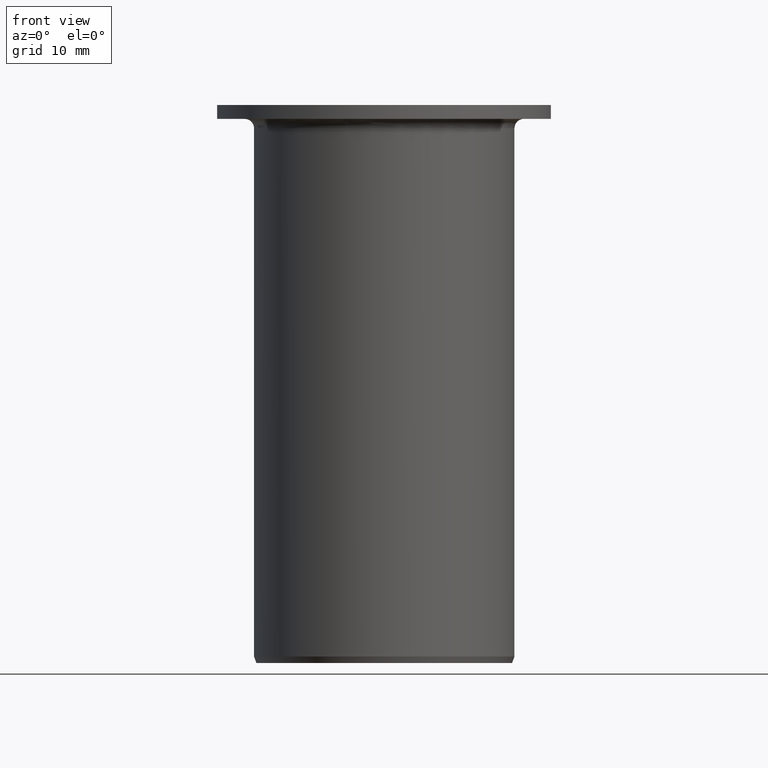
[diagram: clean part render]
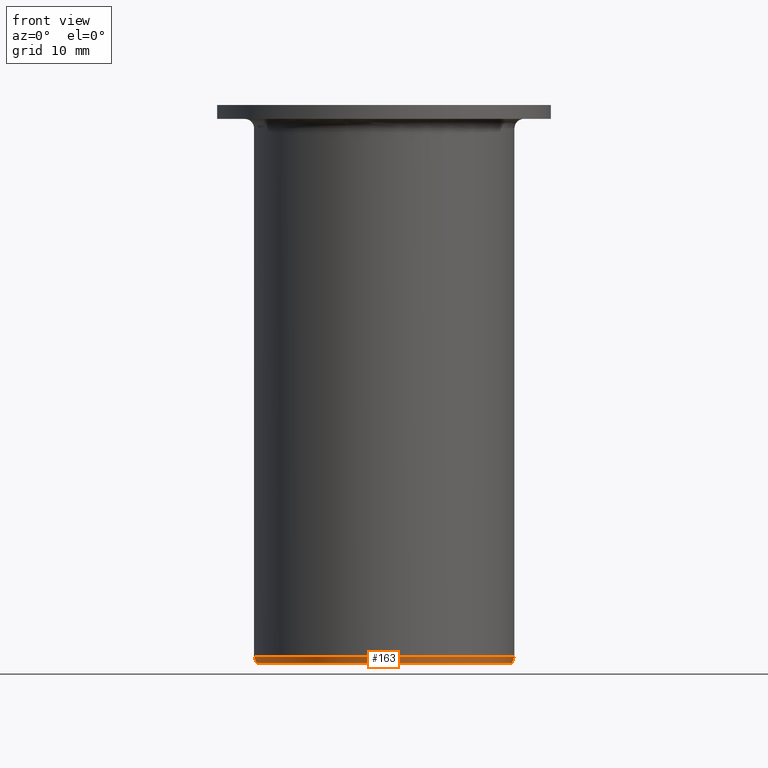
[diagram: same view with one face highlighted and labeled with its STEP entity id]
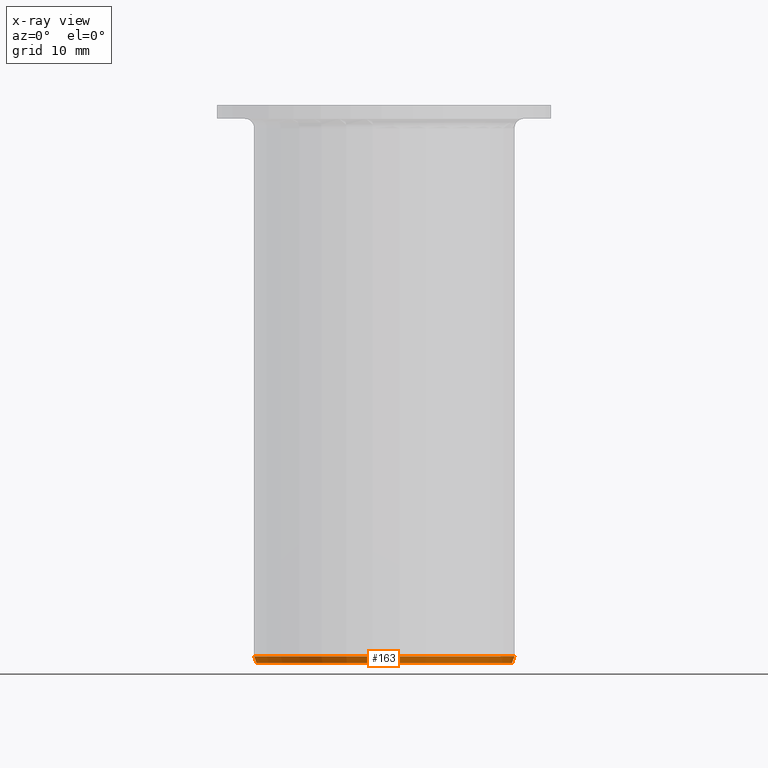
[diagram: x-ray of the same camera — body ghosted, the highlighted face saturated]
A machine part, front view. The second image highlights one B-rep face of the part: STEP entity #163.
The next image is the same camera in x-ray: the body ghosted, the highlighted face saturated — about 0% of this face is hidden behind the body in this view.
In plain terms, the highlighted conical surface has half-angle 20 deg.
Its self-contained STEP definition (entity closure, byte-faithful):
#163=ADVANCED_FACE('',(#187),#188,.T.);
#187=FACE_OUTER_BOUND('',#212,.T.);
#188=CONICAL_SURFACE('',#213,0.0137452208360137,0.349065850398866);
#212=EDGE_LOOP('',(#292,#293,#294,#295));
#213=AXIS2_PLACEMENT_3D('',#296,#297,#298);
#292=ORIENTED_EDGE('',*,*,#337,.T.);
#293=ORIENTED_EDGE('',*,*,#341,.T.);
#294=ORIENTED_EDGE('',*,*,#339,.F.);
#295=ORIENTED_EDGE('',*,*,#318,.F.);
#296=CARTESIAN_POINT('',(0.0,0.0,0.0));
#297=DIRECTION('',(-0.0,6.12323399573677E-017,1.0));
#298=DIRECTION('',(0.0,-1.0,6.12323399573677E-017));
#318=EDGE_CURVE('',#353,#355,#356,.T.);
#337=EDGE_CURVE('',#353,#384,#386,.T.);
#339=EDGE_CURVE('',#355,#388,#389,.T.);
#341=EDGE_CURVE('',#384,#388,#391,.T.);
#353=VERTEX_POINT('',#428);
#355=VERTEX_POINT('',#431);
#356=B_SPLINE_CURVE_WITH_KNOTS('',3,(#432,#433,#434,#435),.UNSPECIFIED.,.F.,.F.,(4,4),(2.13093934189463E-007,0.000746058978307667),.UNSPECIFIED.);
#384=VERTEX_POINT('',#496);
#386=CIRCLE('',#499,0.014);
#388=VERTEX_POINT('',#502);
#389=CIRCLE('',#503,0.0137452208360137);
#391=B_SPLINE_CURVE_WITH_KNOTS('',3,(#506,#507,#508,#509),.UNSPECIFIED.,.F.,.F.,(4,4),(2.13093934189362E-007,0.000746058978307668),.UNSPECIFIED.);
#428=CARTESIAN_POINT('',(0.0139930965719509,-0.000439600191146724,0.0007));
#431=CARTESIAN_POINT('',(0.0137395471423367,-0.00039489258576251,6.43083039248804E-019));
#432=CARTESIAN_POINT('',(0.0139930965719509,-0.000439600191146727,0.000700000000000003));
#433=CARTESIAN_POINT('',(0.0139085944281181,-0.000424700183261299,0.00046666131427307));
#434=CARTESIAN_POINT('',(0.0138240782219094,-0.000409797695799589,0.000233327878928245));
#435=CARTESIAN_POINT('',(0.0137395471423367,-0.000394892585762511,-1.1387211616313E-018));
#496=CARTESIAN_POINT('',(0.0139930965719509,0.000439600191146726,0.0007));
#499=AXIS2_PLACEMENT_3D('',#544,#545,#546);
#502=CARTESIAN_POINT('',(0.0137395471423367,0.000394892585762509,-2.4180197058054E-020));
#503=AXIS2_PLACEMENT_3D('',#548,#549,#550);
#506=CARTESIAN_POINT('',(0.0139930965719509,0.000439600191146727,0.000700000000000003));
#507=CARTESIAN_POINT('',(0.0139085944281181,0.000424700183261299,0.00046666131427307));
#508=CARTESIAN_POINT('',(0.0138240782219094,0.000409797695799589,0.000233327878928245));
#509=CARTESIAN_POINT('',(0.0137395471423367,0.000394892585762511,-1.5776671717778E-018));
#544=CARTESIAN_POINT('',(0.0,0.0,0.0007));
#545=DIRECTION('',(0.0,-6.12323399573677E-017,-1.0));
#546=DIRECTION('',(0.0,1.0,-6.12323399573677E-017));
#548=CARTESIAN_POINT('',(0.0,0.0,0.0));
#549=DIRECTION('',(0.0,-6.12323399573677E-017,-1.0));
#550=DIRECTION('',(0.0,1.0,-6.12323399573677E-017));